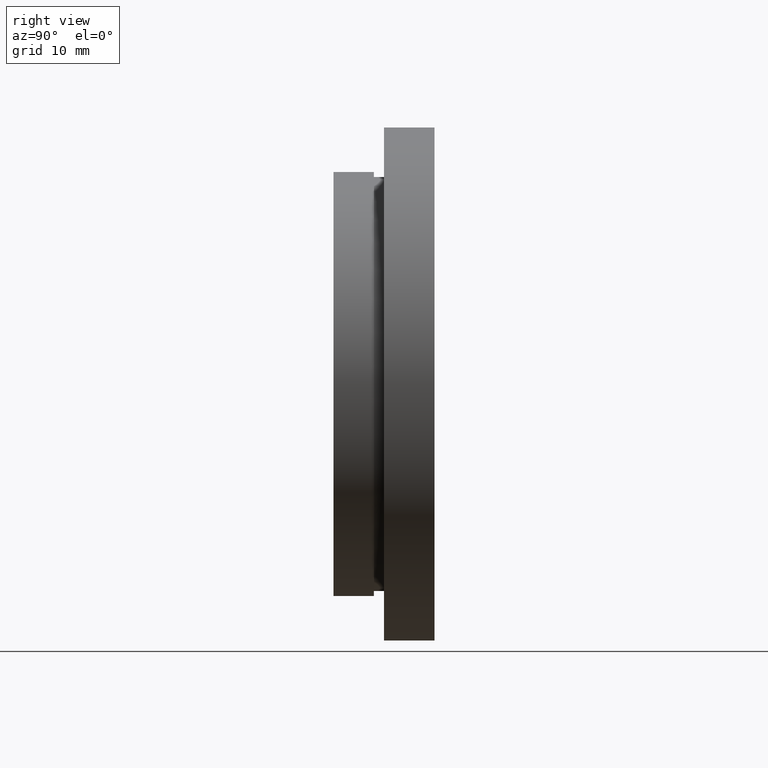
[diagram: clean part render]
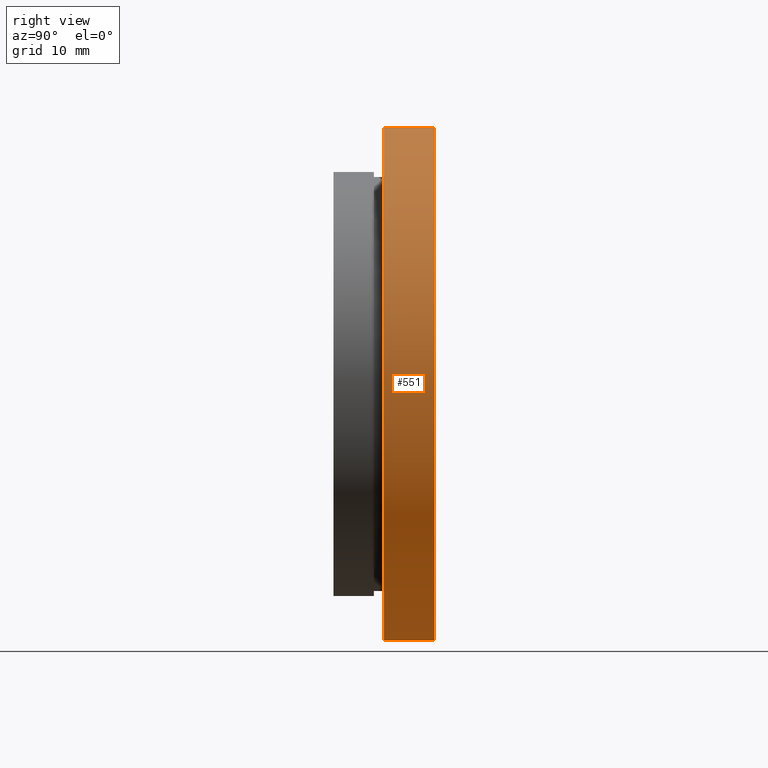
[diagram: same view with one face highlighted and labeled with its STEP entity id]
A machine part, right view. The second image highlights one B-rep face of the part: STEP entity #551.
In plain terms, the highlighted cylindrical surface (partial cylindrical patch) has radius 25.4 mm, axis along (-0, 1, -0).
Its self-contained STEP definition (entity closure, byte-faithful):
#20 = AXIS2_PLACEMENT_3D ( 'NONE', #391, #169, #229 ) ;
#36 = AXIS2_PLACEMENT_3D ( 'NONE', #167, #198, #283 ) ;
#40 = ORIENTED_EDGE ( 'NONE', *, *, #363, .T. ) ;
#81 = ORIENTED_EDGE ( 'NONE', *, *, #416, .F. ) ;
#84 = VECTOR ( 'NONE', #163, 1000.000000000000000 ) ;
#89 = VERTEX_POINT ( 'NONE', #246 ) ;
#113 = VERTEX_POINT ( 'NONE', #325 ) ;
#148 = CARTESIAN_POINT ( 'NONE',  ( 0.0000000000000000000, 13.74468085106383300, 25.39999999999999900 ) ) ;
#163 = DIRECTION ( 'NONE',  ( -0.0000000000000000000, 1.000000000000000000, -0.0000000000000000000 ) ) ;
#164 = CIRCLE ( 'NONE', #36, 25.39999999999999900 ) ;
#167 = CARTESIAN_POINT ( 'NONE',  ( 0.0000000000000000000, 9.999999999999998200, 0.0000000000000000000 ) ) ;
#169 = DIRECTION ( 'NONE',  ( -0.0000000000000000000, 1.000000000000000000, -0.0000000000000000000 ) ) ;
#177 = VERTEX_POINT ( 'NONE', #270 ) ;
#198 = DIRECTION ( 'NONE',  ( -0.0000000000000000000, 1.000000000000000000, -0.0000000000000000000 ) ) ;
#199 = FACE_OUTER_BOUND ( 'NONE', #395, .T. ) ;
#229 = DIRECTION ( 'NONE',  ( 0.0000000000000000000, 0.0000000000000000000, 1.000000000000000000 ) ) ;
#246 = CARTESIAN_POINT ( 'NONE',  ( 3.110602869834276900E-015, 5.000000000000000900, -25.39999999999999900 ) ) ;
#270 = CARTESIAN_POINT ( 'NONE',  ( 0.0000000000000000000, 9.999999999999998200, 25.39999999999999900 ) ) ;
#283 = DIRECTION ( 'NONE',  ( 0.0000000000000000000, 0.0000000000000000000, 1.000000000000000000 ) ) ;
#317 = LINE ( 'NONE', #148, #84 ) ;
#319 = DIRECTION ( 'NONE',  ( 0.0000000000000000000, 0.0000000000000000000, 1.000000000000000000 ) ) ;
#325 = CARTESIAN_POINT ( 'NONE',  ( 0.0000000000000000000, 5.000000000000000900, 25.39999999999999900 ) ) ;
#326 = VECTOR ( 'NONE', #578, 1000.000000000000000 ) ;
#327 = EDGE_CURVE ( 'NONE', #113, #89, #456, .T. ) ;
#363 = EDGE_CURVE ( 'NONE', #89, #547, #501, .T. ) ;
#391 = CARTESIAN_POINT ( 'NONE',  ( 0.0000000000000000000, 13.74468085106383300, 0.0000000000000000000 ) ) ;
#395 = EDGE_LOOP ( 'NONE', ( #540, #40, #81, #577 ) ) ;
#414 = AXIS2_PLACEMENT_3D ( 'NONE', #530, #573, #319 ) ;
#416 = EDGE_CURVE ( 'NONE', #177, #547, #164, .T. ) ;
#427 = EDGE_CURVE ( 'NONE', #113, #177, #317, .T. ) ;
#456 = CIRCLE ( 'NONE', #414, 25.39999999999999900 ) ;
#501 = LINE ( 'NONE', #545, #326 ) ;
#530 = CARTESIAN_POINT ( 'NONE',  ( 0.0000000000000000000, 5.000000000000000900, 0.0000000000000000000 ) ) ;
#540 = ORIENTED_EDGE ( 'NONE', *, *, #327, .T. ) ;
#545 = CARTESIAN_POINT ( 'NONE',  ( 3.110602869834276900E-015, 13.74468085106383300, -25.39999999999999900 ) ) ;
#547 = VERTEX_POINT ( 'NONE', #614 ) ;
#551 = ADVANCED_FACE ( 'NONE', ( #199 ), #552, .T. ) ;
#552 = CYLINDRICAL_SURFACE ( 'NONE', #20, 25.39999999999999900 ) ;
#573 = DIRECTION ( 'NONE',  ( -0.0000000000000000000, 1.000000000000000000, -0.0000000000000000000 ) ) ;
#577 = ORIENTED_EDGE ( 'NONE', *, *, #427, .F. ) ;
#578 = DIRECTION ( 'NONE',  ( -0.0000000000000000000, 1.000000000000000000, -0.0000000000000000000 ) ) ;
#614 = CARTESIAN_POINT ( 'NONE',  ( 3.110602869834276900E-015, 9.999999999999998200, -25.39999999999999900 ) ) ;